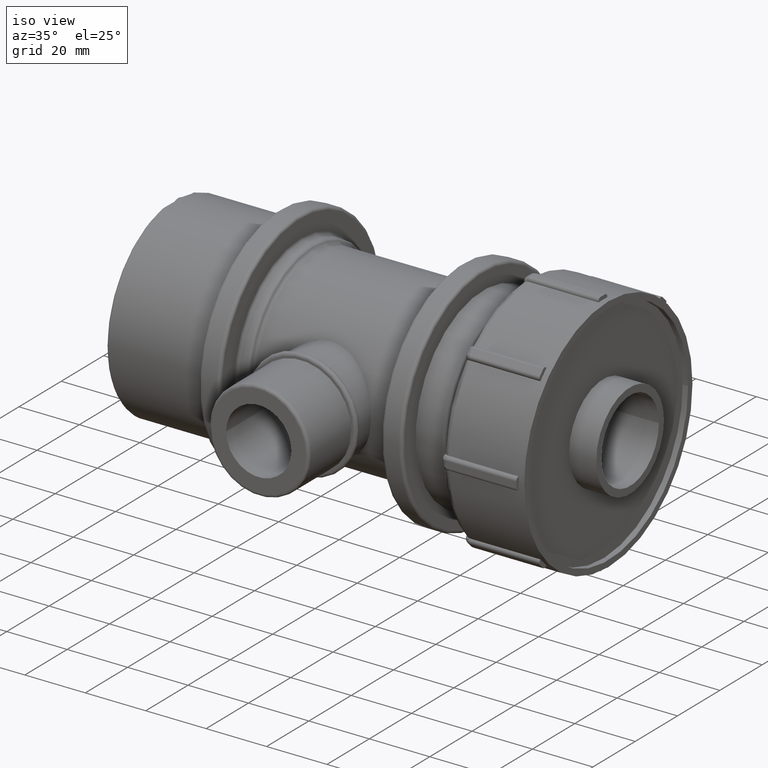
[diagram: clean part render]
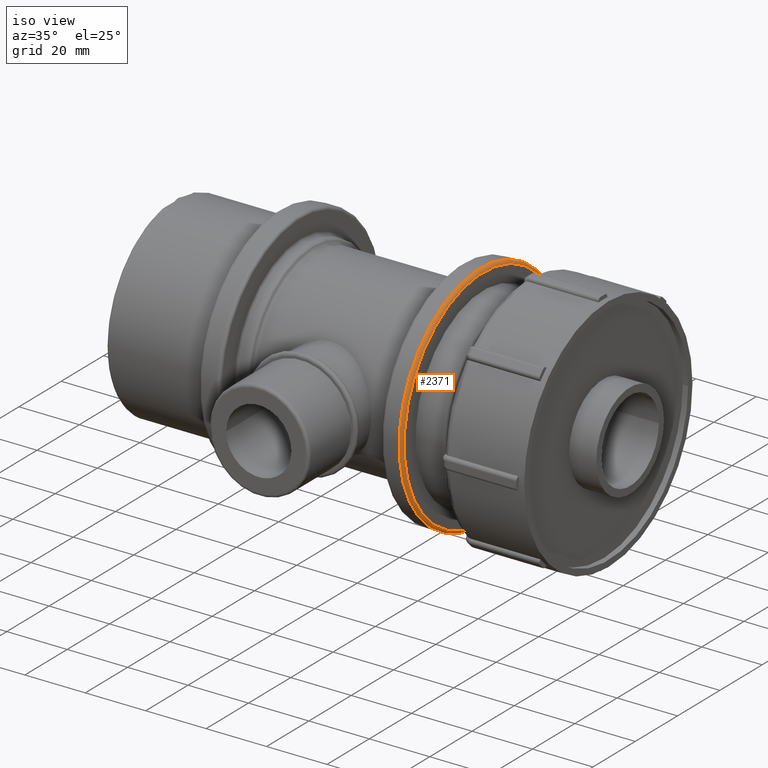
[diagram: same view with one face highlighted and labeled with its STEP entity id]
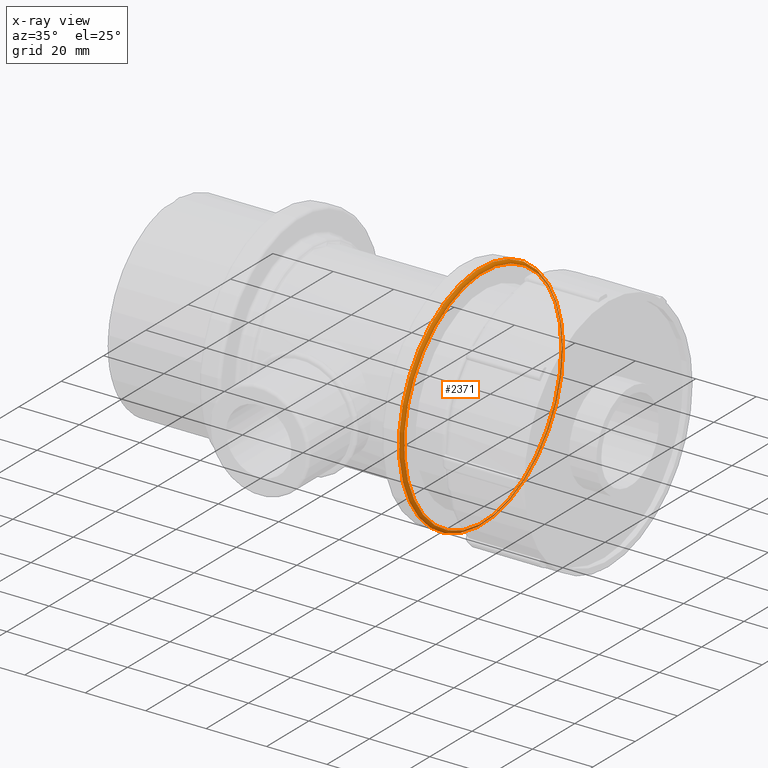
[diagram: x-ray of the same camera — body ghosted, the highlighted face saturated]
A machine part, iso view. The second image highlights one B-rep face of the part: STEP entity #2371.
The next image is the same camera in x-ray: the body ghosted, the highlighted face saturated — about 20% of this face is hidden behind the body in this view.
In plain terms, the highlighted toroidal blend (fillet) surface has major radius 37.4 mm and minor (blend) radius 1 mm.
Its self-contained STEP definition (entity closure, byte-faithful):
#328=CIRCLE('',#2563,38.4);
#329=CIRCLE('',#2565,37.4);
#506=TOROIDAL_SURFACE('',#2564,37.4,1.);
#542=FACE_BOUND('',#791,.T.);
#599=FACE_OUTER_BOUND('',#790,.T.);
#790=EDGE_LOOP('',(#1644));
#791=EDGE_LOOP('',(#1645));
#1046=VERTEX_POINT('',#3741);
#1047=VERTEX_POINT('',#3744);
#1278=EDGE_CURVE('',#1046,#1046,#328,.T.);
#1279=EDGE_CURVE('',#1047,#1047,#329,.T.);
#1644=ORIENTED_EDGE('',*,*,#1278,.T.);
#1645=ORIENTED_EDGE('',*,*,#1279,.T.);
#2371=ADVANCED_FACE('',(#599,#542),#506,.T.);
#2563=AXIS2_PLACEMENT_3D('',#3742,#2932,#2933);
#2564=AXIS2_PLACEMENT_3D('',#3743,#2934,#2935);
#2565=AXIS2_PLACEMENT_3D('',#3745,#2936,#2937);
#2932=DIRECTION('center_axis',(1.,0.,0.));
#2933=DIRECTION('ref_axis',(0.,-1.,1.83697019872103E-16));
#2934=DIRECTION('center_axis',(1.,0.,0.));
#2935=DIRECTION('ref_axis',(0.,0.,-1.));
#2936=DIRECTION('center_axis',(-1.,0.,0.));
#2937=DIRECTION('ref_axis',(0.,-1.,1.83697019872103E-16));
#3741=CARTESIAN_POINT('',(32.7,38.4,-2.35132185436292E-15));
#3742=CARTESIAN_POINT('Origin',(32.7,0.,0.));
#3743=CARTESIAN_POINT('Origin',(32.7,0.,0.));
#3744=CARTESIAN_POINT('',(33.7,37.4,-1.14504475720278E-14));
#3745=CARTESIAN_POINT('Origin',(33.7,0.,0.));